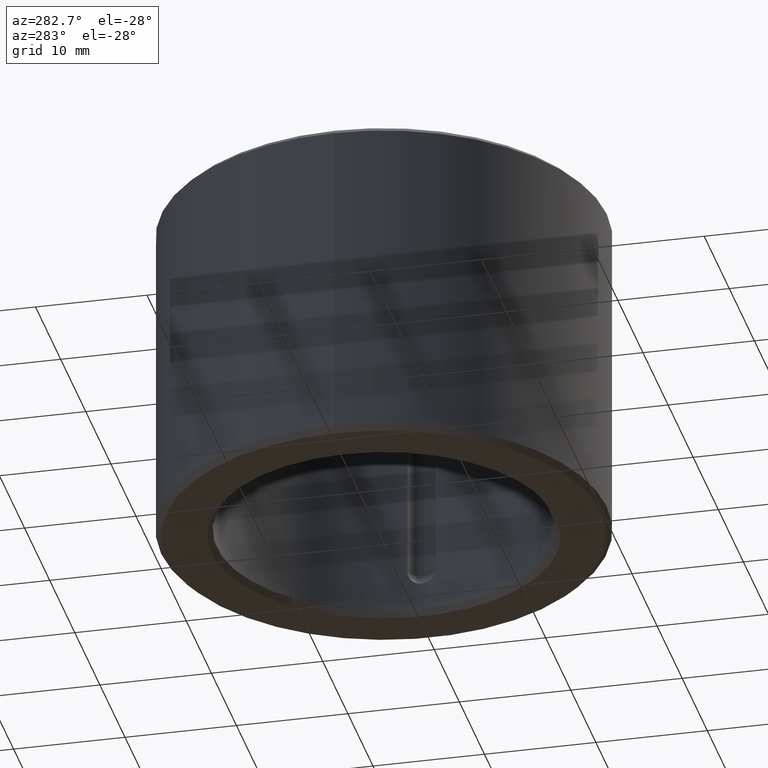
[diagram: clean part render]
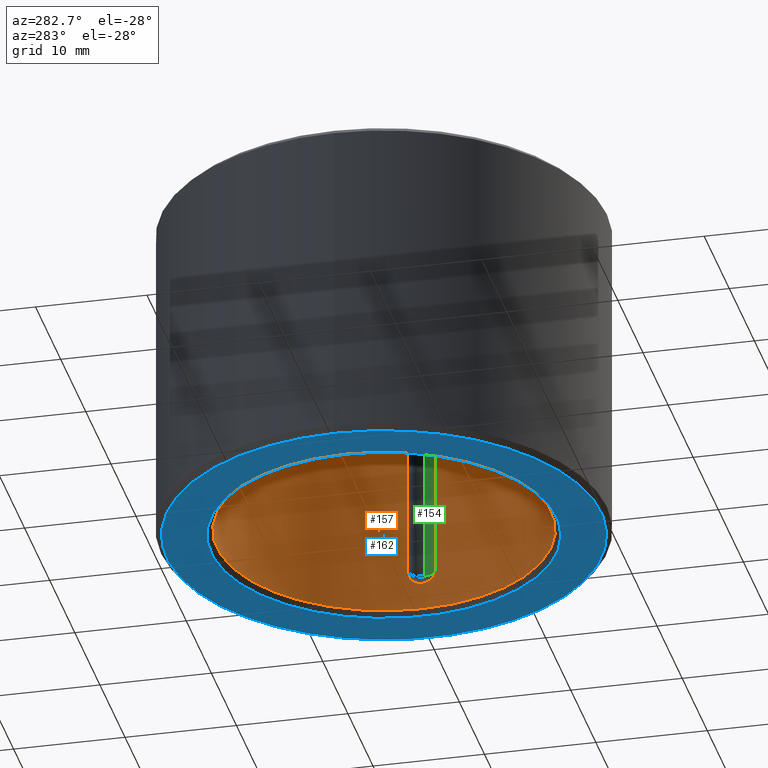
[diagram: same view with three faces highlighted in distinct colors, each labeled with its STEP entity id]
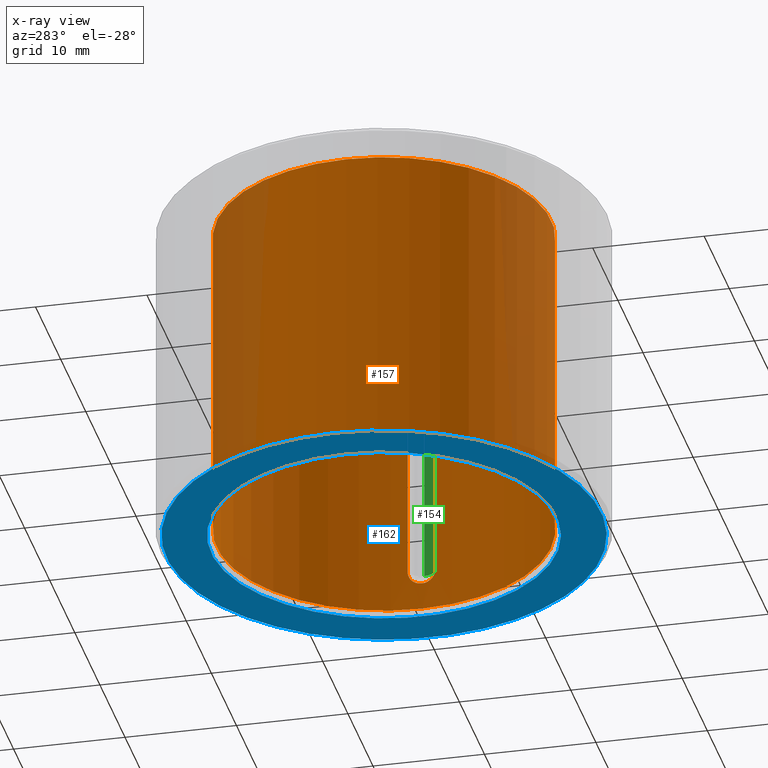
[diagram: x-ray of the same camera — body ghosted, the three highlighted faces saturated]
A machine part, auxiliary view with three faces highlighted in distinct colors.
The next image is the same camera in x-ray (body ghosted, the three faces saturated) — at least one of them is partly hidden behind the body in this view.
Their STEP definitions:

[orange] entity #157 — the highlighted cylindrical surface (bore or boss wall) has radius 15 mm, axis along (-0, 0, -1).
#157=ADVANCED_FACE('',(#176,#177,#178),#179,.F.);
#176=FACE_OUTER_BOUND('',#3308,.T.);
#177=FACE_OUTER_BOUND('',#3309,.T.);
#178=FACE_BOUND('',#3310,.T.);
#179=CYLINDRICAL_SURFACE('',#3311,0.015);
#3308=EDGE_LOOP('',(#6456));
#3309=EDGE_LOOP('',(#6457));
#3310=EDGE_LOOP('',(#6458,#6459,#6460,#6461));
#3311=AXIS2_PLACEMENT_3D('',#6462,#6463,#6464);
#6456=ORIENTED_EDGE('',*,*,#6515,.T.);
#6457=ORIENTED_EDGE('',*,*,#6516,.F.);
#6458=ORIENTED_EDGE('',*,*,#6505,.T.);
#6459=ORIENTED_EDGE('',*,*,#6513,.T.);
#6460=ORIENTED_EDGE('',*,*,#6511,.T.);
#6461=ORIENTED_EDGE('',*,*,#6517,.T.);
#6462=CARTESIAN_POINT('',(0.0,0.0,-1.0842021724855E-019));
#6463=DIRECTION('',(0.0,-6.12323399573677E-017,-1.0));
#6464=DIRECTION('',(0.0,1.0,-6.12323399573677E-017));
#6505=EDGE_CURVE('',#6527,#6525,#6528,.F.);
#6511=EDGE_CURVE('',#6532,#6537,#6539,.T.);
#6513=EDGE_CURVE('',#6525,#6532,#6541,.T.);
#6515=EDGE_CURVE('',#6543,#6543,#6544,.T.);
#6516=EDGE_CURVE('',#6545,#6545,#6546,.T.);
#6517=EDGE_CURVE('',#6537,#6527,#6547,.T.);
#6525=VERTEX_POINT('',#6561);
#6527=VERTEX_POINT('',#6563);
#6528=LINE('',#6564,#6565);
#6532=VERTEX_POINT('',#6570);
#6537=VERTEX_POINT('',#6576);
#6539=LINE('',#6578,#6579);
#6541=B_SPLINE_CURVE_WITH_KNOTS('',3,(#6613,#6614,#6615,#6616,#6617,#6618,#6619,#6620,#6621,#6622,#6623,#6624,#6625,#6626,#6627,#6628,#6629,#6630,#6631,#6632,#6633,#6634,#6635,#6636,#6637,#6638,#6639,#6640,#6641,#6642,#6643,#6644,#6645,#6646,#6647,#6648,#6649,#6650,#6651,#6652,#6653,#6654,#6655,#6656,#6657,#6658,#6659,#6660,#6661,#6662,#6663,#6664,#6665,#6666,#6667,#6668,#6669,#6670,#6671,#6672,#6673,#6674,#6675,#6676,#6677,#6678,#6679,#6680,#6681,#6682,#6683,#6684,#6685,#6686,#6687,#6688,#6689,#6690,#6691,#6692),.UNSPECIFIED.,.F.,.F.,(4,1,1,2,2,2,1,1,2,1,2,2,1,1,2,2,2,1,1,2,2,2,1,1,1,2,2,1,2,1,2,2,2,1,1,1,2,2,1,1,1,2,2,2,2,1,2,1,2,2,4),(0.0,0.000122153690987456,0.000244307381974912,0.000366461072962368,0.000396999495709234,0.0004275379184561,0.000488614763949833,0.000610768454937307,0.000732922145924781,0.000793998991418522,0.000824537414165393,0.000855075836912264,0.000977229527899754,0.00109938321888724,0.00122153690987474,0.00125207533262161,0.00128261375536848,0.00134369060086223,0.00146584429184972,0.00158799798283721,0.00164907482833096,0.00167961325107783,0.0017101516738247,0.0018323053648122,0.0019544590557997,0.0020766127467872,0.00210715116953408,0.00213768959228095,0.0021987664377747,0.0023209201287622,0.0024430738197497,0.00250415066524345,0.00253468908799032,0.0025652275107372,0.00268738120172469,0.00280953489271219,0.00293168858369969,0.00296222700644657,0.00299276542919344,0.00305384227468719,0.00317599596567468,0.00329814965666217,0.00332868807940904,0.00335922650215591,0.00342030334764966,0.00354245703863717,0.00366461072962468,0.00372568757511843,0.00375622599786531,0.00378676442061219,0.00390891811159971),.UNSPECIFIED.);
#6543=VERTEX_POINT('',#6726);
#6544=CIRCLE('',#6727,0.015);
#6545=VERTEX_POINT('',#6728);
#6546=CIRCLE('',#6729,0.015);
#6547=B_SPLINE_CURVE_WITH_KNOTS('',3,(#6730,#6731,#6732,#6733,#6734,#6735,#6736,#6737,#6738,#6739,#6740,#6741,#6742,#6743,#6744,#6745,#6746,#6747,#6748,#6749,#6750,#6751,#6752,#6753,#6754,#6755,#6756,#6757,#6758,#6759,#6760,#6761,#6762,#6763,#6764,#6765,#6766,#6767,#6768,#6769,#6770,#6771,#6772,#6773,#6774,#6775,#6776,#6777,#6778,#6779,#6780,#6781,#6782,#6783,#6784,#6785,#6786,#6787,#6788,#6789,#6790,#6791,#6792,#6793,#6794,#6795,#6796,#6797,#6798,#6799,#6800,#6801,#6802,#6803,#6804,#6805,#6806,#6807,#6808,#6809),.UNSPECIFIED.,.F.,.F.,(4,1,1,2,2,2,1,1,2,1,2,2,1,1,2,2,2,1,1,2,2,2,1,1,1,2,2,1,2,1,2,2,2,1,1,1,2,2,1,1,1,2,2,2,2,1,2,1,2,2,4),(0.0,0.000122153690987488,0.000244307381974976,0.000366461072962463,0.000396999495709336,0.000427537918456208,0.000488614763949953,0.000610768454937444,0.000732922145924935,0.00079399899141868,0.000824537414165553,0.000855075836912425,0.000977229527899918,0.00109938321888741,0.0012215369098749,0.00125207533262178,0.00128261375536865,0.00134369060086239,0.00146584429184989,0.00158799798283738,0.00164907482833112,0.001679613251078,0.00171015167382487,0.00183230536481236,0.00195445905579985,0.00207661274678735,0.00210715116953422,0.00213768959228109,0.00219876643777484,0.00232092012876233,0.00244307381974982,0.00250415066524357,0.00253468908799044,0.00256522751073731,0.0026873812017248,0.0028095348927123,0.00293168858369979,0.00296222700644666,0.00299276542919354,0.00305384227468728,0.00317599596567478,0.00329814965666227,0.00332868807940914,0.00335922650215602,0.00342030334764976,0.00354245703863726,0.00366461072962475,0.00372568757511849,0.00375622599786536,0.00378676442061224,0.00390891811159972),.UNSPECIFIED.);
#6561=CARTESIAN_POINT('',(0.00125000000000003,-0.0149478259288767,0.02575));
#6563=CARTESIAN_POINT('',(0.00125000000000003,-0.0149478259288767,0.00425));
#6564=CARTESIAN_POINT('',(0.00125000000000003,-0.0149478259288767,8.06870141651985E-019));
#6565=VECTOR('',#6825,1.0);
#6570=CARTESIAN_POINT('',(-0.00124999999999997,-0.0149478259288767,0.02575));
#6576=CARTESIAN_POINT('',(-0.00124999999999997,-0.0149478259288767,0.00425));
#6578=CARTESIAN_POINT('',(-0.00124999999999997,-0.0149478259288767,6.429791155786E-019));
#6579=VECTOR('',#6837,1.0);
#6613=CARTESIAN_POINT('',(0.00125000000000003,-0.0149478259288767,0.02575));
#6614=CARTESIAN_POINT('',(0.00125000000000003,-0.0149478259288767,0.0257913055506548));
#6615=CARTESIAN_POINT('',(0.00124591628478223,-0.0149481682368506,0.0258732179067768));
#6616=CARTESIAN_POINT('',(0.00122796626810367,-0.0149496582088275,0.0259940634185949));
#6617=CARTESIAN_POINT('',(0.00120816759569762,-0.014951269966679,0.0260732875231541));
#6618=CARTESIAN_POINT('',(0.00119329054111382,-0.0149524602187809,0.0261223747032337));
#6619=CARTESIAN_POINT('',(0.00119018969664499,-0.0149527074126673,0.0261321706958378));
#6620=CARTESIAN_POINT('',(0.00118373456101409,-0.0149532198195537,0.0261517193595258));
#6621=CARTESIAN_POINT('',(0.00118037540465056,-0.014953485414736,0.0261614853711812));
#6622=CARTESIAN_POINT('',(0.00116995289200488,-0.0149543056946483,0.0261906080535916));
#6623=CARTESIAN_POINT('',(0.00114775088975377,-0.0149560383738249,0.0262480997426315));
#6624=CARTESIAN_POINT('',(0.00110411924048089,-0.0149593457191149,0.0263402390192928));
#6625=CARTESIAN_POINT('',(0.00106227715792327,-0.0149623555556966,0.026410101968692));
#6626=CARTESIAN_POINT('',(0.00102826801357955,-0.0149647183076088,0.0264610427093912));
#6627=CARTESIAN_POINT('',(0.0010106053782622,-0.0149659260225194,0.0264861483167868));
#6628=CARTESIAN_POINT('',(0.000991939682555065,-0.0149671672659825,0.0265106981937522));
#6629=CARTESIAN_POINT('',(0.000979270392497519,-0.0149680015299339,0.0265269398781007));
#6630=CARTESIAN_POINT('',(0.000972818122083791,-0.0149684223524024,0.0265350037333848));
#6631=CARTESIAN_POINT('',(0.00094016813585658,-0.0149705300164417,0.026574790420436));
#6632=CARTESIAN_POINT('',(0.000885193151019212,-0.0149739416707364,0.0266353848392468));
#6633=CARTESIAN_POINT('',(0.000794772353358719,-0.0149790289854892,0.0267173689118556));
#6634=CARTESIAN_POINT('',(0.000729194738420757,-0.0149823043542774,0.0267661019599227));
#6635=CARTESIAN_POINT('',(0.000686507258358864,-0.0149842844617249,0.0267946594154026));
#6636=CARTESIAN_POINT('',(0.00067788448869418,-0.014984677127604,0.0268002756478392));
#6637=CARTESIAN_POINT('',(0.000660466417960106,-0.0149854549516955,0.0268113154230497));
#6638=CARTESIAN_POINT('',(0.000651685020320742,-0.0149858394688655,0.0268167297804249));
#6639=CARTESIAN_POINT('',(0.000625222174245468,-0.0149869746460751,0.0268325989070078));
#6640=CARTESIAN_POINT('',(0.000571706538198169,-0.0149891766577952,0.0268629137382593));
#6641=CARTESIAN_POINT('',(0.000479624172641444,-0.0149924715307445,0.0269064693793874));
#6642=CARTESIAN_POINT('',(0.000402918597501532,-0.0149946386488072,0.0269339885804567));
#6643=CARTESIAN_POINT('',(0.000344232286185782,-0.0149960623843153,0.0269518411799666));
#6644=CARTESIAN_POINT('',(0.000324476986027356,-0.0149965033569794,0.0269573267532721));
#6645=CARTESIAN_POINT('',(0.000294548839086602,-0.0149971110732695,0.0269648443448853));
#6646=CARTESIAN_POINT('',(0.000284519226288164,-0.0149973047663891,0.0269672326639928));
#6647=CARTESIAN_POINT('',(0.00026437850885337,-0.014997673334559,0.0269717653426395));
#6648=CARTESIAN_POINT('',(0.000213991324873993,-0.0149985446716735,0.0269824486231793));
#6649=CARTESIAN_POINT('',(0.000122980800445798,-0.0149996603537169,0.0269959336649207));
#6650=CARTESIAN_POINT('',(9.82351627621333E-007,-0.0150001662137138,0.0270019896516566));
#6651=CARTESIAN_POINT('',(-8.07846385574729E-005,-0.0149998384853091,0.0269980667366324));
#6652=CARTESIAN_POINT('',(-0.00013202903466329,-0.0149994224348958,0.0269930504334351));
#6653=CARTESIAN_POINT('',(-0.000142299379340205,-0.0149993285067809,0.0269919167552543));
#6654=CARTESIAN_POINT('',(-0.000162769538781466,-0.0149991203357042,0.0269894000232317));
#6655=CARTESIAN_POINT('',(-0.000193366007532343,-0.0149987777527483,0.0269852525355662));
#6656=CARTESIAN_POINT('',(-0.000223640042763666,-0.0149983461391739,0.0269800010864082));
#6657=CARTESIAN_POINT('',(-0.000283765399163557,-0.0149973692464725,0.0269680506407404));
#6658=CARTESIAN_POINT('',(-0.000362807287365618,-0.0149957636405425,0.0269482634204534));
#6659=CARTESIAN_POINT('',(-0.00043962526299045,-0.0149936040770372,0.0269208571298115));
#6660=CARTESIAN_POINT('',(-0.000496390666753012,-0.0149917962467365,0.0268973950947834));
#6661=CARTESIAN_POINT('',(-0.000515170868924005,-0.0149911622868327,0.0268890889919159));
#6662=CARTESIAN_POINT('',(-0.000543124605824374,-0.0149901668635187,0.0268758871397574));
#6663=CARTESIAN_POINT('',(-0.000552409402159349,-0.0149898275025601,0.026871360704739));
#6664=CARTESIAN_POINT('',(-0.000570803462687919,-0.014989138337846,0.0268621103293784));
#6665=CARTESIAN_POINT('',(-0.000616413817872494,-0.0149873870466786,0.0268384599405363));
#6666=CARTESIAN_POINT('',(-0.000695188849460448,-0.0149839966052894,0.026791237624651));
#6667=CARTESIAN_POINT('',(-0.000793303033538043,-0.0149791075123027,0.0267185821320078));
#6668=CARTESIAN_POINT('',(-0.000854078402917575,-0.0149756938095023,0.0266636475096103));
#6669=CARTESIAN_POINT('',(-0.000890565337599483,-0.0149735415589168,0.0266272113400432));
#6670=CARTESIAN_POINT('',(-0.000897767426379097,-0.0149731113712527,0.0266198386816162));
#6671=CARTESIAN_POINT('',(-0.000911952500241487,-0.0149722541096893,0.0266049551574243));
#6672=CARTESIAN_POINT('',(-0.000932916076117262,-0.0149709720186454,0.0265824078301394));
#6673=CARTESIAN_POINT('',(-0.000979654901834591,-0.0149680149638394,0.0265282583232152));
#6674=CARTESIAN_POINT('',(-0.00104030985013567,-0.0149639331462987,0.026446575106906));
#6675=CARTESIAN_POINT('',(-0.0010823587655668,-0.0149609116276348,0.0263766424351753));
#6676=CARTESIAN_POINT('',(-0.00110657111618549,-0.0149591284485939,0.0263314683501783));
#6677=CARTESIAN_POINT('',(-0.0011113099316939,-0.014958777083377,0.0263223600525277));
#6678=CARTESIAN_POINT('',(-0.00112057814088879,-0.0149580856470542,0.0263039949676426));
#6679=CARTESIAN_POINT('',(-0.00112511183738923,-0.0149577452506126,0.0262947290490532));
#6680=CARTESIAN_POINT('',(-0.0011383654405633,-0.0149567443863685,0.0262667684760067));
#6681=CARTESIAN_POINT('',(-0.00114670390801937,-0.0149561068517046,0.0262479857821928));
#6682=CARTESIAN_POINT('',(-0.00117025818471854,-0.0149542884762259,0.0261912193885492));
#6683=CARTESIAN_POINT('',(-0.00119777450781987,-0.0149521152948075,0.0261144173448347));
#6684=CARTESIAN_POINT('',(-0.00121766086286415,-0.0149504972068484,0.0260354294604694));
#6685=CARTESIAN_POINT('',(-0.00122968679260247,-0.0149495112485102,0.0259753605568034));
#6686=CARTESIAN_POINT('',(-0.00123497628612255,-0.0149490751820224,0.0259451187476022));
#6687=CARTESIAN_POINT('',(-0.00123916334767854,-0.0149487282344138,0.0259145609113686));
#6688=CARTESIAN_POINT('',(-0.00124170693106301,-0.0149485171681321,0.0258941179833692));
#6689=CARTESIAN_POINT('',(-0.00124285568903167,-0.0149484216820589,0.0258838516365056));
#6690=CARTESIAN_POINT('',(-0.00124795764413524,-0.0149479971398499,0.0258324991400142));
#6691=CARTESIAN_POINT('',(-0.00124999999999997,-0.0149478259288767,0.0257913054888809));
#6692=CARTESIAN_POINT('',(-0.00124999999999997,-0.0149478259288767,0.02575));
#6726=CARTESIAN_POINT('',(0.0,0.015,0.0005));
#6727=AXIS2_PLACEMENT_3D('',#6838,#6839,#6840);
#6728=CARTESIAN_POINT('',(0.0,0.015,0.0295));
#6729=AXIS2_PLACEMENT_3D('',#6841,#6842,#6843);
#6730=CARTESIAN_POINT('',(-0.00124999999999997,-0.0149478259288767,0.00425));
#6731=CARTESIAN_POINT('',(-0.00124999999999997,-0.0149478259288767,0.00420869444934516));
#6732=CARTESIAN_POINT('',(-0.00124591628478217,-0.0149481682368506,0.0041267820932232));
#6733=CARTESIAN_POINT('',(-0.00122796626810361,-0.0149496582088275,0.00400593658140512));
#6734=CARTESIAN_POINT('',(-0.00120816759569756,-0.014951269966679,0.00392671247684591));
#6735=CARTESIAN_POINT('',(-0.00119329054111376,-0.0149524602187809,0.00387762529676626));
#6736=CARTESIAN_POINT('',(-0.00119018969664493,-0.0149527074126673,0.00386782930416217));
#6737=CARTESIAN_POINT('',(-0.00118373456101403,-0.0149532198195537,0.00384828064047417));
#6738=CARTESIAN_POINT('',(-0.0011803754046505,-0.014953485414736,0.00383851462881877));
#6739=CARTESIAN_POINT('',(-0.00116995289200482,-0.0149543056946483,0.00380939194640843));
#6740=CARTESIAN_POINT('',(-0.00114775088975371,-0.0149560383738249,0.00375190025736848));
#6741=CARTESIAN_POINT('',(-0.00110411916663088,-0.014959345785341,0.00365976102416319));
#6742=CARTESIAN_POINT('',(-0.00106227715792321,-0.0149623555556966,0.00358989803130805));
#6743=CARTESIAN_POINT('',(-0.00102826801357949,-0.0149647183076088,0.00353895729060881));
#6744=CARTESIAN_POINT('',(-0.00101060537826214,-0.0149659260225194,0.0035138516832132));
#6745=CARTESIAN_POINT('',(-0.000991939682555006,-0.0149671672659825,0.00348930180624779));
#6746=CARTESIAN_POINT('',(-0.000979270392497459,-0.0149680015299339,0.00347306012189934));
#6747=CARTESIAN_POINT('',(-0.000972818122083732,-0.0149684223524024,0.00346499626661518));
#6748=CARTESIAN_POINT('',(-0.00094016813585652,-0.0149705300164417,0.003425209579564));
#6749=CARTESIAN_POINT('',(-0.00088519315101915,-0.0149739416707364,0.00336461516075315));
#6750=CARTESIAN_POINT('',(-0.000794772353358659,-0.0149790289854892,0.00328263108814443));
#6751=CARTESIAN_POINT('',(-0.000729194738420696,-0.0149823043542774,0.0032338980400773));
#6752=CARTESIAN_POINT('',(-0.000686507258358803,-0.014984284461725,0.00320534058459738));
#6753=CARTESIAN_POINT('',(-0.000677884488694119,-0.014984677127604,0.00319972435216079));
#6754=CARTESIAN_POINT('',(-0.000660466417960044,-0.0149854549516956,0.00318868457695029));
#6755=CARTESIAN_POINT('',(-0.000651685020320684,-0.0149858394688655,0.00318327021957515));
#6756=CARTESIAN_POINT('',(-0.00062522217424541,-0.0149869746460751,0.00316740109299223));
#6757=CARTESIAN_POINT('',(-0.00057170653819811,-0.0149891766577952,0.00313708626174073));
#6758=CARTESIAN_POINT('',(-0.000479624172641383,-0.0149924715307445,0.00309353062061258));
#6759=CARTESIAN_POINT('',(-0.000402918597501468,-0.0149946386488072,0.00306601141954328));
#6760=CARTESIAN_POINT('',(-0.000344232286185718,-0.0149960623843153,0.00304815882003342));
#6761=CARTESIAN_POINT('',(-0.000324476986027291,-0.0149965033569794,0.00304267324672787));
#6762=CARTESIAN_POINT('',(-0.000294548839086536,-0.0149971110732695,0.00303515565511472));
#6763=CARTESIAN_POINT('',(-0.00028451922628811,-0.0149973047663891,0.00303276733600719));
#6764=CARTESIAN_POINT('',(-0.000264378508853315,-0.014997673334559,0.00302823465736046));
#6765=CARTESIAN_POINT('',(-0.000213991324873938,-0.0149985446716735,0.0030175513768207));
#6766=CARTESIAN_POINT('',(-0.000122980786839752,-0.0149996603624536,0.0030040665866621));
#6767=CARTESIAN_POINT('',(-9.82368408256083E-007,-0.0150001662225419,0.00299801003966669));
#6768=CARTESIAN_POINT('',(8.07846385575352E-005,-0.0149998384853091,0.00300193326336756));
#6769=CARTESIAN_POINT('',(0.000132029034663353,-0.0149994224348958,0.00300694956656495));
#6770=CARTESIAN_POINT('',(0.000142299379340262,-0.0149993285067809,0.00300808324474573));
#6771=CARTESIAN_POINT('',(0.000162769538781522,-0.0149991203357042,0.00301059997676829));
#6772=CARTESIAN_POINT('',(0.000193366007532399,-0.0149987777527483,0.00301474746443381));
#6773=CARTESIAN_POINT('',(0.000223640042763724,-0.0149983461391739,0.00301999891359182));
#6774=CARTESIAN_POINT('',(0.000283765399163616,-0.0149973692464725,0.00303194935925958));
#6775=CARTESIAN_POINT('',(0.000362807287365678,-0.0149957636405425,0.00305173657954659));
#6776=CARTESIAN_POINT('',(0.000439625262990512,-0.0149936040770372,0.00307914287018854));
#6777=CARTESIAN_POINT('',(0.000496390666753074,-0.0149917962467365,0.00310260490521664));
#6778=CARTESIAN_POINT('',(0.000515170868924068,-0.0149911622868327,0.00311091100808405));
#6779=CARTESIAN_POINT('',(0.000543124605824437,-0.0149901668635187,0.0031241128602426));
#6780=CARTESIAN_POINT('',(0.000552409402159405,-0.0149898275025601,0.00312863929526103));
#6781=CARTESIAN_POINT('',(0.000570803462687975,-0.014989138337846,0.00313788967062156));
#6782=CARTESIAN_POINT('',(0.000616413817872552,-0.0149873870466785,0.00316154005946374));
#6783=CARTESIAN_POINT('',(0.000695188849460509,-0.0149839966052894,0.00320876237534904));
#6784=CARTESIAN_POINT('',(0.000793303033538104,-0.0149791075123027,0.00328141786799222));
#6785=CARTESIAN_POINT('',(0.000854078402917637,-0.0149756938095023,0.00333635249038974));
#6786=CARTESIAN_POINT('',(0.000890565337599546,-0.0149735415589168,0.00337278865995675));
#6787=CARTESIAN_POINT('',(0.000897767426379156,-0.0149731113712527,0.0033801613183838));
#6788=CARTESIAN_POINT('',(0.000911952500241546,-0.0149722541096893,0.00339504484257567));
#6789=CARTESIAN_POINT('',(0.000932916076117324,-0.0149709720186454,0.00341759216986061));
#6790=CARTESIAN_POINT('',(0.00097965490183465,-0.0149680149638394,0.00347174167678481));
#6791=CARTESIAN_POINT('',(0.00104030985013573,-0.0149639331462987,0.00355342489309405));
#6792=CARTESIAN_POINT('',(0.00108235876556686,-0.0149609116276348,0.00362335756482469));
#6793=CARTESIAN_POINT('',(0.00110657111618555,-0.0149591284485939,0.00366853164982173));
#6794=CARTESIAN_POINT('',(0.00111130993169396,-0.014958777083377,0.00367763994747226));
#6795=CARTESIAN_POINT('',(0.00112057814088885,-0.0149580856470542,0.00369600503235743));
#6796=CARTESIAN_POINT('',(0.00112511183738929,-0.0149577452506126,0.00370527095094684));
#6797=CARTESIAN_POINT('',(0.00113836544056336,-0.0149567443863685,0.00373323152399334));
#6798=CARTESIAN_POINT('',(0.00114670390801943,-0.0149561068517046,0.00375201421780719));
#6799=CARTESIAN_POINT('',(0.0011702581847186,-0.0149542884762259,0.00380878061145083));
#6800=CARTESIAN_POINT('',(0.00119777450781993,-0.0149521152948075,0.00388558265516535));
#6801=CARTESIAN_POINT('',(0.00121766086286421,-0.0149504972068484,0.0039645705395306));
#6802=CARTESIAN_POINT('',(0.00122968679260253,-0.0149495112485102,0.00402463944319661));
#6803=CARTESIAN_POINT('',(0.00123497628612261,-0.0149490751820224,0.00405488125239782));
#6804=CARTESIAN_POINT('',(0.0012391633476786,-0.0149487282344138,0.00408543908863143));
#6805=CARTESIAN_POINT('',(0.00124170693106307,-0.0149485171681321,0.00410588201663078));
#6806=CARTESIAN_POINT('',(0.00124285568903173,-0.0149484216820589,0.00411614836349443));
#6807=CARTESIAN_POINT('',(0.0012479576441353,-0.0149479971398499,0.00416750085998583));
#6808=CARTESIAN_POINT('',(0.00125000000000003,-0.0149478259288767,0.00420869451111907));
#6809=CARTESIAN_POINT('',(0.00125000000000003,-0.0149478259288767,0.00425));
#6825=DIRECTION('',(0.0,-6.12323399573677E-017,-1.0));
#6837=DIRECTION('',(0.0,-6.12323399573677E-017,-1.0));
#6838=CARTESIAN_POINT('',(0.0,0.0,0.0005));
#6839=DIRECTION('',(0.0,-6.12323399573677E-017,-1.0));
#6840=DIRECTION('',(0.0,1.0,-6.12323399573677E-017));
#6841=CARTESIAN_POINT('',(0.0,0.0,0.0295));
#6842=DIRECTION('',(0.0,-6.12323399573677E-017,-1.0));
#6843=DIRECTION('',(0.0,1.0,-6.12323399573677E-017));

[blue] entity #162 — the highlighted planar face has unit normal (-0, 0, -1).
#162=ADVANCED_FACE('',(#192,#193),#194,.T.);
#192=FACE_OUTER_BOUND('',#3324,.T.);
#193=FACE_BOUND('',#3325,.T.);
#194=PLANE('',#3326);
#3324=EDGE_LOOP('',(#6485));
#3325=EDGE_LOOP('',(#6486));
#3326=AXIS2_PLACEMENT_3D('',#6487,#6488,#6489);
#6485=ORIENTED_EDGE('',*,*,#6522,.T.);
#6486=ORIENTED_EDGE('',*,*,#6523,.F.);
#6487=CARTESIAN_POINT('',(0.0155,0.0,-1.51788304147971E-018));
#6488=DIRECTION('',(0.0,-6.12323399573677E-017,-1.0));
#6489=DIRECTION('',(0.0,1.0,-6.12323399573677E-017));
#6522=EDGE_CURVE('',#6556,#6556,#6557,.T.);
#6523=EDGE_CURVE('',#6558,#6558,#6559,.T.);
#6556=VERTEX_POINT('',#6818);
#6557=CIRCLE('',#6819,0.0195);
#6558=VERTEX_POINT('',#6820);
#6559=CIRCLE('',#6821,0.0155);
#6818=CARTESIAN_POINT('',(0.0,0.0195,-2.49507323615127E-018));
#6819=AXIS2_PLACEMENT_3D('',#6856,#6857,#6858);
#6820=CARTESIAN_POINT('',(0.0,0.0155,-2.683824745316E-018));
#6821=AXIS2_PLACEMENT_3D('',#6859,#6860,#6861);
#6856=CARTESIAN_POINT('',(0.0,0.0,-1.3010426069826E-018));
#6857=DIRECTION('',(0.0,-6.12323399573677E-017,-1.0));
#6858=DIRECTION('',(0.0,1.0,-6.12323399573677E-017));
#6859=CARTESIAN_POINT('',(0.0,0.0,-1.73472347597681E-018));
#6860=DIRECTION('',(0.0,-6.12323399573677E-017,-1.0));
#6861=DIRECTION('',(0.0,1.0,-6.12323399573677E-017));

[green] entity #154 — the highlighted cylindrical surface (edge-blend (fillet) strip) has radius 1.25 mm, axis along (-0, 0, -1).
#154=ADVANCED_FACE('',(#170),#171,.F.);
#170=FACE_OUTER_BOUND('',#206,.T.);
#171=CYLINDRICAL_SURFACE('',#207,0.00125);
#206=EDGE_LOOP('',(#6438,#6439,#6440,#6441));
#207=AXIS2_PLACEMENT_3D('',#6442,#6443,#6444);
#6438=ORIENTED_EDGE('',*,*,#6508,.T.);
#6439=ORIENTED_EDGE('',*,*,#6509,.F.);
#6440=ORIENTED_EDGE('',*,*,#6510,.F.);
#6441=ORIENTED_EDGE('',*,*,#6511,.F.);
#6442=CARTESIAN_POINT('',(-1.57533059132262E-005,-0.01475,6.429791155786E-019));
#6443=DIRECTION('',(0.0,-6.12323399573677E-017,-1.0));
#6444=DIRECTION('',(0.0,1.0,-6.12323399573677E-017));
#6508=EDGE_CURVE('',#6532,#6533,#6534,.T.);
#6509=EDGE_CURVE('',#6535,#6533,#6536,.F.);
#6510=EDGE_CURVE('',#6537,#6535,#6538,.T.);
#6511=EDGE_CURVE('',#6532,#6537,#6539,.T.);
#6532=VERTEX_POINT('',#6570);
#6533=VERTEX_POINT('',#6571);
#6534=CIRCLE('',#6572,0.00125);
#6535=VERTEX_POINT('',#6573);
#6536=LINE('',#6574,#6575);
#6537=VERTEX_POINT('',#6576);
#6538=CIRCLE('',#6577,0.00125);
#6539=LINE('',#6578,#6579);
#6570=CARTESIAN_POINT('',(-0.00124999999999997,-0.0149478259288767,0.02575));
#6571=CARTESIAN_POINT('',(-1.57533059132352E-005,-0.016,0.02575));
#6572=AXIS2_PLACEMENT_3D('',#6830,#6831,#6832);
#6573=CARTESIAN_POINT('',(-1.57533059132262E-005,-0.016,0.00425));
#6574=CARTESIAN_POINT('',(-1.57533059132262E-005,-0.016,0.02575));
#6575=VECTOR('',#6833,1.0);
#6576=CARTESIAN_POINT('',(-0.00124999999999997,-0.0149478259288767,0.00425));
#6577=AXIS2_PLACEMENT_3D('',#6834,#6835,#6836);
#6578=CARTESIAN_POINT('',(-0.00124999999999997,-0.0149478259288767,6.429791155786E-019));
#6579=VECTOR('',#6837,1.0);
#6830=CARTESIAN_POINT('',(-1.57533059132287E-005,-0.01475,0.02575));
#6831=DIRECTION('',(-2.81098338652691E-014,0.0,1.0));
#6832=DIRECTION('',(1.0,0.0,2.81098338652691E-014));
#6833=DIRECTION('',(0.0,0.0,-1.0));
#6834=CARTESIAN_POINT('',(-1.57533059131655E-005,-0.01475,0.00425));
#6835=DIRECTION('',(0.0,0.0,1.0));
#6836=DIRECTION('',(1.0,0.0,0.0));
#6837=DIRECTION('',(0.0,-6.12323399573677E-017,-1.0));